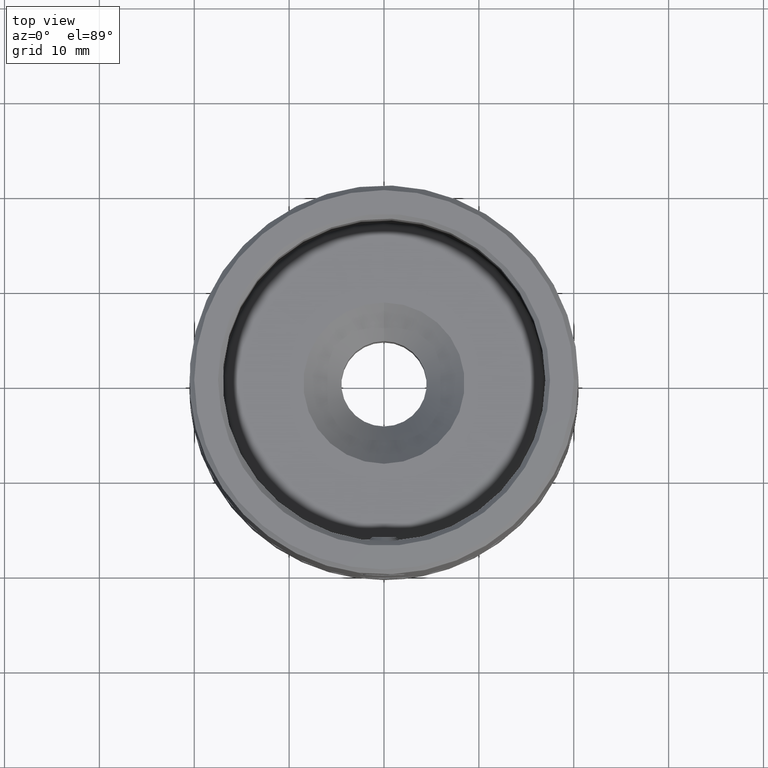
[diagram: clean part render]
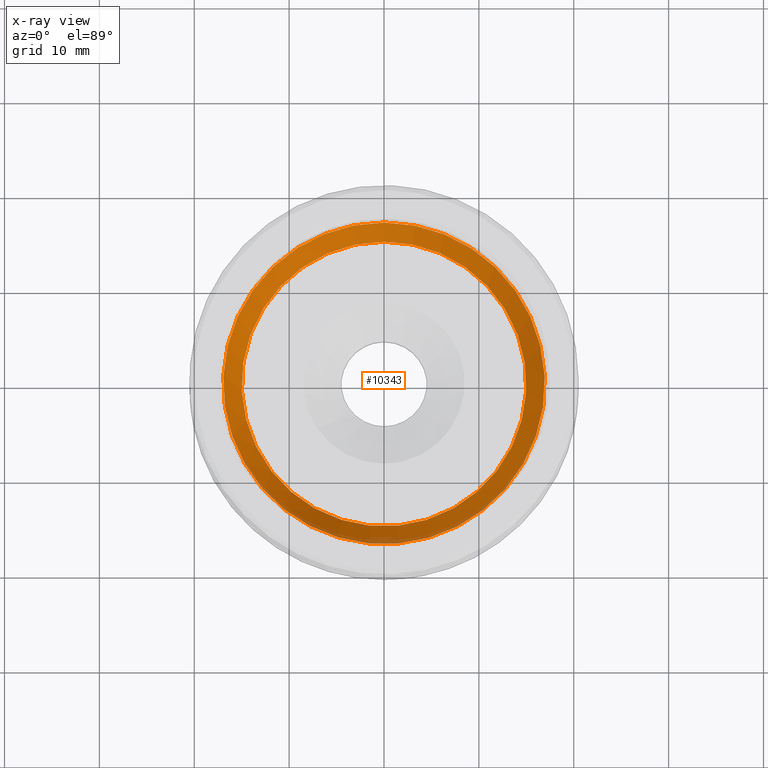
[diagram: x-ray — body ghosted, one internal face saturated and labeled with its STEP entity id]
A machine part, top view, then the same camera in x-ray: the body is ghosted and one INTERNAL B-rep face — a face not visible from any outside direction — is saturated and labeled: STEP entity #10343.
In plain terms, the highlighted conical surface has half-angle 26 deg.
Its self-contained STEP definition (entity closure, byte-faithful):
#195 = CARTESIAN_POINT ( 'NONE',  ( 0.000000000000000000, 16.94999999999999929, 12.99809249107962650 ) ) ;
#1120 = AXIS2_PLACEMENT_3D ( 'NONE', #14561, #5670, #15979 ) ;
#1963 = DIRECTION ( 'NONE',  ( 0.000000000000000000, 1.000000000000000000, 1.023435679042364138E-16 ) ) ;
#2683 = AXIS2_PLACEMENT_3D ( 'NONE', #3357, #14796, #1963 ) ;
#2982 = FACE_OUTER_BOUND ( 'NONE', #12611, .T. ) ;
#3357 = CARTESIAN_POINT ( 'NONE',  ( 0.000000000000000000, -1.503206412479578837E-15, 12.99809249107962472 ) ) ;
#5013 = FACE_BOUND ( 'NONE', #9844, .T. ) ;
#5670 = DIRECTION ( 'NONE',  ( -0.000000000000000000, 1.156482317317871478E-16, -1.000000000000000000 ) ) ;
#7770 = VERTEX_POINT ( 'NONE', #15641 ) ;
#8269 = ORIENTED_EDGE ( 'NONE', *, *, #9720, .T. ) ;
#8655 = CIRCLE ( 'NONE', #2683, 16.94999999999999929 ) ;
#9720 = EDGE_CURVE ( 'NONE', #12002, #12002, #8655, .T. ) ;
#9830 = DIRECTION ( 'NONE',  ( 0.000000000000000000, -1.000000000000000000, -1.156482317317871232E-16 ) ) ;
#9844 = EDGE_LOOP ( 'NONE', ( #9980 ) ) ;
#9980 = ORIENTED_EDGE ( 'NONE', *, *, #12226, .F. ) ;
#10092 = AXIS2_PLACEMENT_3D ( 'NONE', #16247, #16192, #9830 ) ;
#10343 = ADVANCED_FACE ( 'NONE', ( #2982, #5013 ), #15686, .T. ) ;
#12002 = VERTEX_POINT ( 'NONE', #195 ) ;
#12226 = EDGE_CURVE ( 'NONE', #7770, #7770, #12455, .T. ) ;
#12455 = CIRCLE ( 'NONE', #1120, 15.00000000000000178 ) ;
#12611 = EDGE_LOOP ( 'NONE', ( #8269 ) ) ;
#14561 = CARTESIAN_POINT ( 'NONE',  ( 0.000000000000000000, -1.040834085586084059E-15, 8.999999999999998224 ) ) ;
#14796 = DIRECTION ( 'NONE',  ( -0.000000000000000000, 1.156482317317871478E-16, -1.000000000000000000 ) ) ;
#15641 = CARTESIAN_POINT ( 'NONE',  ( 0.000000000000000000, 15.00000000000000000, 9.000000000000000000 ) ) ;
#15686 = CONICAL_SURFACE ( 'NONE', #10092, 15.00000000000000178, 0.4537856055185255366 ) ;
#15979 = DIRECTION ( 'NONE',  ( 0.000000000000000000, 1.000000000000000000, 1.156482317317871232E-16 ) ) ;
#16192 = DIRECTION ( 'NONE',  ( 0.000000000000000000, -1.156482317317871478E-16, 1.000000000000000000 ) ) ;
#16247 = CARTESIAN_POINT ( 'NONE',  ( 0.000000000000000000, -1.040834085586084059E-15, 8.999999999999998224 ) ) ;